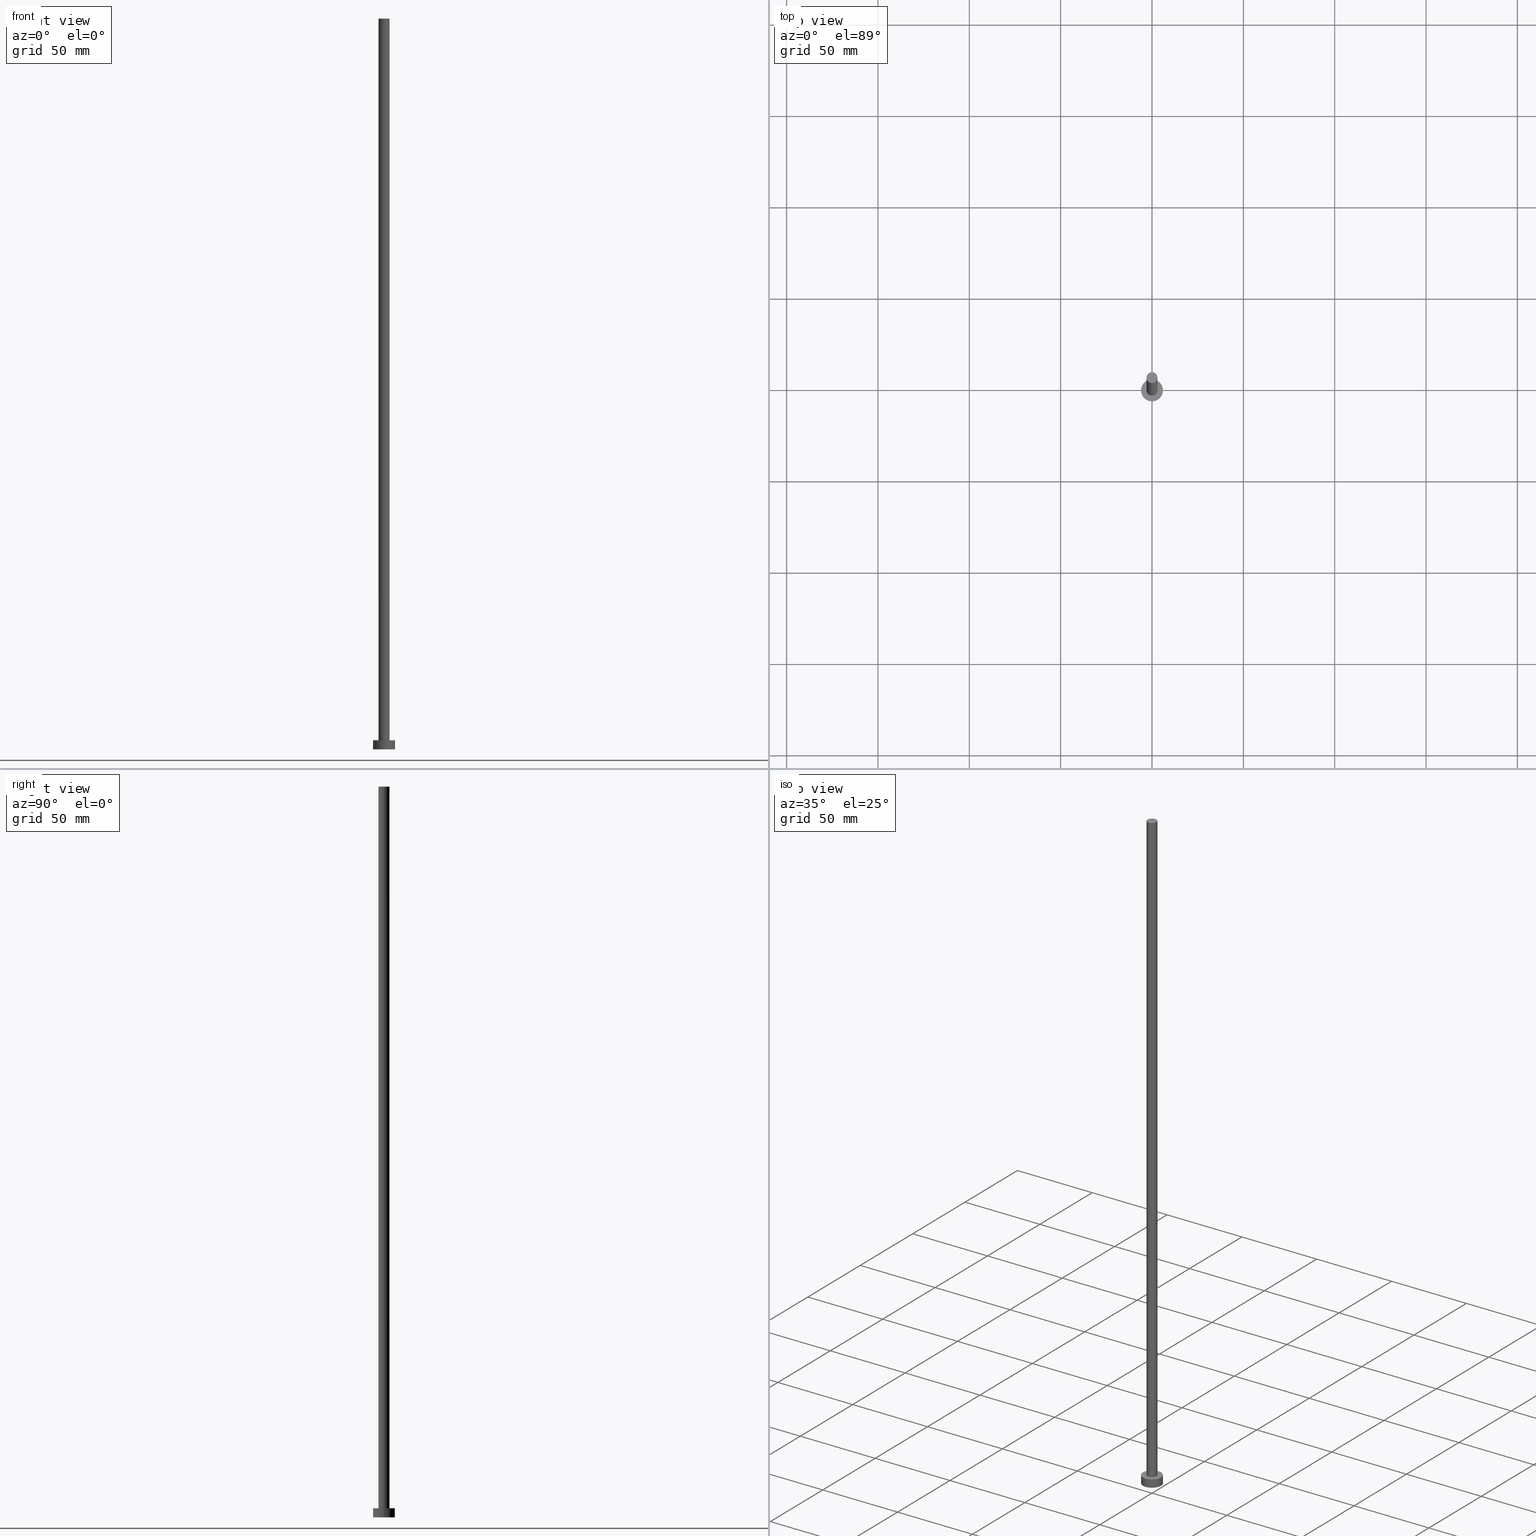
[diagram: canonical four-view strip — front | top / right | iso, engineering-drawing reading convention]
A machine part, canonical four-view strip (front | top / right | iso — engineering-drawing reading convention). The complete STEP part file that produces these views, byte-faithful:
ISO-10303-21;
HEADER;
FILE_DESCRIPTION (( 'STEP AP203' ),
    '1' );
FILE_NAME ('09df.STEP',
    '2023-02-13T15:21:38',
    ( '' ),
    ( '' ),
    'SwSTEP 2.0',
    'SolidWorks 2019',
    '' );
FILE_SCHEMA (( 'CONFIG_CONTROL_DESIGN' ));
ENDSEC;

DATA;
#1 = DIRECTION ( 'NONE',  ( 0.000000000000000000, 0.000000000000000000, 1.000000000000000000 ) ) ;
#2 = EDGE_CURVE ( 'NONE', #233, #191, #178, .T. ) ;
#3 = DIRECTION ( 'NONE',  ( 1.000000000000000000, 0.000000000000000000, 0.000000000000000000 ) ) ;
#4 = PERSON_AND_ORGANIZATION_ROLE ( 'classification_officer' ) ;
#5 = CARTESIAN_POINT ( 'NONE',  ( 3.000000000000000444, 3.673940397442059868E-16, 400.0000000000000000 ) ) ;
#6 = DATE_AND_TIME ( #51, #101 ) ;
#7 = DIRECTION ( 'NONE',  ( -0.000000000000000000, -0.000000000000000000, -1.000000000000000000 ) ) ;
#8 = CARTESIAN_POINT ( 'NONE',  ( 0.000000000000000000, 0.000000000000000000, 400.0000000000000000 ) ) ;
#9 = APPROVAL_STATUS ( 'not_yet_approved' ) ;
#10 = DIRECTION ( 'NONE',  ( -0.000000000000000000, -0.000000000000000000, -1.000000000000000000 ) ) ;
#11 = CYLINDRICAL_SURFACE ( 'NONE', #224, 6.000000000000000888 ) ;
#12 = EDGE_LOOP ( 'NONE', ( #94, #171, #74, #192 ) ) ;
#13 = DIRECTION ( 'NONE',  ( 1.000000000000000000, 0.000000000000000000, 0.000000000000000000 ) ) ;
#14 = ORIENTED_EDGE ( 'NONE', *, *, #231, .T. ) ;
#15 = FACE_OUTER_BOUND ( 'NONE', #72, .T. ) ;
#16 = APPROVAL_ROLE ( '' ) ;
#17 = EDGE_LOOP ( 'NONE', ( #40, #254, #111, #120 ) ) ;
#18 = AXIS2_PLACEMENT_3D ( 'NONE', #234, #50, #89 ) ;
#19 = DIRECTION ( 'NONE',  ( -0.000000000000000000, -0.000000000000000000, -1.000000000000000000 ) ) ;
#20 = CIRCLE ( 'NONE', #162, 3.000000000000000444 ) ;
#21 = PERSON_AND_ORGANIZATION_ROLE ( 'creator' ) ;
#22 = CIRCLE ( 'NONE', #211, 6.000000000000000888 ) ;
#23 = AXIS2_PLACEMENT_3D ( 'NONE', #30, #131, #13 ) ;
#24 = APPROVAL_DATE_TIME ( #186, #78 ) ;
#25 =( NAMED_UNIT ( * ) SI_UNIT ( $, .STERADIAN. ) SOLID_ANGLE_UNIT ( ) );
#26 = CALENDAR_DATE ( 2023, 13, 2 ) ;
#27 = APPROVAL ( #9, 'NEUR�EN�' ) ;
#28 = CARTESIAN_POINT ( 'NONE',  ( 0.000000000000000000, 0.000000000000000000, 5.000000000000000000 ) ) ;
#29 = CARTESIAN_POINT ( 'NONE',  ( 3.000000000000000444, 3.673940397442059868E-16, 400.0000000000000000 ) ) ;
#30 = CARTESIAN_POINT ( 'NONE',  ( 0.000000000000000000, 0.000000000000000000, 0.000000000000000000 ) ) ;
#31 = VERTEX_POINT ( 'NONE', #90 ) ;
#32 = EDGE_CURVE ( 'NONE', #252, #53, #118, .T. ) ;
#33 = PLANE ( 'NONE',  #63 ) ;
#34 = ORIENTED_EDGE ( 'NONE', *, *, #2, .F. ) ;
#35 = CARTESIAN_POINT ( 'NONE',  ( 0.000000000000000000, 0.000000000000000000, 5.000000000000000000 ) ) ;
#36 = CALENDAR_DATE ( 2023, 13, 2 ) ;
#37 = CC_DESIGN_APPROVAL ( #180, ( #164 ) ) ;
#38 = ORIENTED_EDGE ( 'NONE', *, *, #244, .F. ) ;
#39 = DIRECTION ( 'NONE',  ( 0.000000000000000000, 0.000000000000000000, 1.000000000000000000 ) ) ;
#40 = ORIENTED_EDGE ( 'NONE', *, *, #75, .F. ) ;
#41 = ADVANCED_FACE ( 'NONE', ( #152 ), #246, .T. ) ;
#42 = CARTESIAN_POINT ( 'NONE',  ( 0.000000000000000000, 0.000000000000000000, 5.000000000000000000 ) ) ;
#43 = AXIS2_PLACEMENT_3D ( 'NONE', #83, #81, #160 ) ;
#44 = COORDINATED_UNIVERSAL_TIME_OFFSET ( 1, 0, .AHEAD. ) ;
#45 = AXIS2_PLACEMENT_3D ( 'NONE', #183, #1, #241 ) ;
#46 = CARTESIAN_POINT ( 'NONE',  ( 0.000000000000000000, 0.000000000000000000, 400.0000000000000000 ) ) ;
#47 = SECURITY_CLASSIFICATION_LEVEL ( 'unclassified' ) ;
#48 = CC_DESIGN_PERSON_AND_ORGANIZATION_ASSIGNMENT ( #108, #4, ( #182 ) ) ;
#49 = EDGE_CURVE ( 'NONE', #53, #62, #69, .T. ) ;
#50 = DIRECTION ( 'NONE',  ( -0.000000000000000000, -0.000000000000000000, -1.000000000000000000 ) ) ;
#51 = CALENDAR_DATE ( 2023, 13, 2 ) ;
#52 = LINE ( 'NONE', #67, #239 ) ;
#53 = VERTEX_POINT ( 'NONE', #217 ) ;
#54 = EDGE_CURVE ( 'NONE', #56, #252, #238, .T. ) ;
#55 = CARTESIAN_POINT ( 'NONE',  ( 0.000000000000000000, 0.000000000000000000, 400.0000000000000000 ) ) ;
#56 = VERTEX_POINT ( 'NONE', #84 ) ;
#57 = CLOSED_SHELL ( 'NONE', ( #41, #143, #206, #250, #181, #139, #249 ) ) ;
#58 = DIRECTION ( 'NONE',  ( -1.000000000000000000, 0.000000000000000000, 0.000000000000000000 ) ) ;
#59 = PRODUCT ( '09df', '09df', '', ( #185 ) ) ;
#60 = DATE_TIME_ROLE ( 'classification_date' ) ;
#61 = EDGE_CURVE ( 'NONE', #252, #56, #22, .T. ) ;
#62 = VERTEX_POINT ( 'NONE', #86 ) ;
#63 = AXIS2_PLACEMENT_3D ( 'NONE', #248, #39, #119 ) ;
#64 = PERSON ( 'NEUR�EN�', 'NEUR�EN�', 'NEUR�EN�', ('NEUR�EN�'), ('NEUR�EN�'), ('NEUR�EN�') ) ;
#65 = AXIS2_PLACEMENT_3D ( 'NONE', #35, #71, #95 ) ;
#66 = UNCERTAINTY_MEASURE_WITH_UNIT (LENGTH_MEASURE( 1.000000000000000082E-05 ), #130, 'distance_accuracy_value', 'NONE');
#67 = CARTESIAN_POINT ( 'NONE',  ( -3.000000000000000444, 0.000000000000000000, 400.0000000000000000 ) ) ;
#68 = CARTESIAN_POINT ( 'NONE',  ( 0.000000000000000000, 0.000000000000000000, 400.0000000000000000 ) ) ;
#69 = CIRCLE ( 'NONE', #43, 6.000000000000000888 ) ;
#70 = PERSON_AND_ORGANIZATION ( #64, #222 ) ;
#71 = DIRECTION ( 'NONE',  ( 0.000000000000000000, 0.000000000000000000, 1.000000000000000000 ) ) ;
#72 = EDGE_LOOP ( 'NONE', ( #34, #79, #155, #174 ) ) ;
#73 = FACE_OUTER_BOUND ( 'NONE', #195, .T. ) ;
#74 = ORIENTED_EDGE ( 'NONE', *, *, #32, .T. ) ;
#75 = EDGE_CURVE ( 'NONE', #233, #31, #169, .T. ) ;
#76 = DIRECTION ( 'NONE',  ( -0.000000000000000000, -0.000000000000000000, -1.000000000000000000 ) ) ;
#77 = ADVANCED_BREP_SHAPE_REPRESENTATION ( '09df', ( #104, #45 ), #85 ) ;
#78 = APPROVAL ( #107, 'NEUR�EN�' ) ;
#79 = ORIENTED_EDGE ( 'NONE', *, *, #170, .F. ) ;
#80 = APPLICATION_CONTEXT ( 'configuration controlled 3d designs of mechanical parts and assemblies' ) ;
#81 = DIRECTION ( 'NONE',  ( 0.000000000000000000, 0.000000000000000000, 1.000000000000000000 ) ) ;
#82 = AXIS2_PLACEMENT_3D ( 'NONE', #115, #210, #127 ) ;
#83 = CARTESIAN_POINT ( 'NONE',  ( 0.000000000000000000, 0.000000000000000000, 0.000000000000000000 ) ) ;
#84 = CARTESIAN_POINT ( 'NONE',  ( 6.000000000000000888, 7.347880794884120722E-16, 5.000000000000000000 ) ) ;
#85 =( GEOMETRIC_REPRESENTATION_CONTEXT ( 3 ) GLOBAL_UNCERTAINTY_ASSIGNED_CONTEXT ( ( #66 ) ) GLOBAL_UNIT_ASSIGNED_CONTEXT ( ( #130, #136, #25 ) ) REPRESENTATION_CONTEXT ( 'NONE', 'WORKASPACE' ) );
#86 = CARTESIAN_POINT ( 'NONE',  ( 6.000000000000000888, 7.347880794884120722E-16, 0.000000000000000000 ) ) ;
#87 = PERSON_AND_ORGANIZATION ( #64, #222 ) ;
#88 = DATE_AND_TIME ( #209, #156 ) ;
#89 = DIRECTION ( 'NONE',  ( -1.000000000000000000, 0.000000000000000000, 0.000000000000000000 ) ) ;
#90 = CARTESIAN_POINT ( 'NONE',  ( -3.000000000000000444, 0.000000000000000000, 400.0000000000000000 ) ) ;
#91 = DIRECTION ( 'NONE',  ( 1.000000000000000000, 0.000000000000000000, -0.000000000000000000 ) ) ;
#92 = EDGE_LOOP ( 'NONE', ( #216, #38 ) ) ;
#93 = DIRECTION ( 'NONE',  ( 1.000000000000000000, 0.000000000000000000, 0.000000000000000000 ) ) ;
#94 = ORIENTED_EDGE ( 'NONE', *, *, #220, .F. ) ;
#95 = DIRECTION ( 'NONE',  ( 1.000000000000000000, 0.000000000000000000, 0.000000000000000000 ) ) ;
#96 = ORIENTED_EDGE ( 'NONE', *, *, #54, .F. ) ;
#97 = CC_DESIGN_PERSON_AND_ORGANIZATION_ASSIGNMENT ( #105, #145, ( #159 ) ) ;
#98 = CYLINDRICAL_SURFACE ( 'NONE', #18, 3.000000000000000444 ) ;
#99 = DATE_AND_TIME ( #36, #103 ) ;
#100 = ORIENTED_EDGE ( 'NONE', *, *, #75, .T. ) ;
#101 = LOCAL_TIME ( 16, 21, 38.00000000000000000, #227 ) ;
#102 = DIRECTION ( 'NONE',  ( 0.000000000000000000, 0.000000000000000000, 1.000000000000000000 ) ) ;
#103 = LOCAL_TIME ( 16, 21, 38.00000000000000000, #137 ) ;
#104 = MANIFOLD_SOLID_BREP ( 'P�idat vysunut�m3', #57 ) ;
#105 = PERSON_AND_ORGANIZATION ( #64, #222 ) ;
#106 = DIRECTION ( 'NONE',  ( 0.000000000000000000, 0.000000000000000000, 1.000000000000000000 ) ) ;
#107 = APPROVAL_STATUS ( 'not_yet_approved' ) ;
#108 = PERSON_AND_ORGANIZATION ( #64, #222 ) ;
#109 = DIRECTION ( 'NONE',  ( 1.000000000000000000, 0.000000000000000000, 0.000000000000000000 ) ) ;
#110 = PLANE ( 'NONE',  #253 ) ;
#111 = ORIENTED_EDGE ( 'NONE', *, *, #244, .T. ) ;
#112 = DIRECTION ( 'NONE',  ( 0.000000000000000000, 0.000000000000000000, 1.000000000000000000 ) ) ;
#113 = ORIENTED_EDGE ( 'NONE', *, *, #231, .F. ) ;
#114 = LOCAL_TIME ( 16, 21, 38.00000000000000000, #44 ) ;
#115 = CARTESIAN_POINT ( 'NONE',  ( 0.000000000000000000, 0.000000000000000000, 5.000000000000000000 ) ) ;
#116 = SHAPE_DEFINITION_REPRESENTATION ( #219, #77 ) ;
#117 = CC_DESIGN_DATE_AND_TIME_ASSIGNMENT ( #226, #161, ( #164 ) ) ;
#118 = LINE ( 'NONE', #167, #133 ) ;
#119 = DIRECTION ( 'NONE',  ( 1.000000000000000000, 0.000000000000000000, -0.000000000000000000 ) ) ;
#120 = ORIENTED_EDGE ( 'NONE', *, *, #197, .F. ) ;
#121 = VECTOR ( 'NONE', #7, 1000.000000000000000 ) ;
#122 = DIRECTION ( 'NONE',  ( 0.000000000000000000, 0.000000000000000000, 1.000000000000000000 ) ) ;
#123 = CC_DESIGN_PERSON_AND_ORGANIZATION_ASSIGNMENT ( #87, #21, ( #164 ) ) ;
#124 = AXIS2_PLACEMENT_3D ( 'NONE', #68, #19, #140 ) ;
#125 = DESIGN_CONTEXT ( 'detailed design', #200, 'design' ) ;
#126 = APPROVAL_ROLE ( '' ) ;
#127 = DIRECTION ( 'NONE',  ( -1.000000000000000000, 0.000000000000000000, 0.000000000000000000 ) ) ;
#128 = CC_DESIGN_PERSON_AND_ORGANIZATION_ASSIGNMENT ( #205, #225, ( #159 ) ) ;
#129 = ORIENTED_EDGE ( 'NONE', *, *, #61, .T. ) ;
#130 =( LENGTH_UNIT ( ) NAMED_UNIT ( * ) SI_UNIT ( .MILLI., .METRE. ) );
#131 = DIRECTION ( 'NONE',  ( 0.000000000000000000, 0.000000000000000000, 1.000000000000000000 ) ) ;
#132 = APPROVAL_DATE_TIME ( #99, #27 ) ;
#133 = VECTOR ( 'NONE', #10, 1000.000000000000000 ) ;
#134 = CC_DESIGN_SECURITY_CLASSIFICATION ( #182, ( #159 ) ) ;
#135 = FACE_OUTER_BOUND ( 'NONE', #12, .T. ) ;
#136 =( NAMED_UNIT ( * ) PLANE_ANGLE_UNIT ( ) SI_UNIT ( $, .RADIAN. ) );
#137 = COORDINATED_UNIVERSAL_TIME_OFFSET ( 1, 0, .AHEAD. ) ;
#138 = ORIENTED_EDGE ( 'NONE', *, *, #32, .F. ) ;
#139 = ADVANCED_FACE ( 'NONE', ( #15 ), #98, .T. ) ;
#140 = DIRECTION ( 'NONE',  ( -1.000000000000000000, 0.000000000000000000, 0.000000000000000000 ) ) ;
#141 = VECTOR ( 'NONE', #232, 1000.000000000000000 ) ;
#142 = APPROVAL_PERSON_ORGANIZATION ( #212, #27, #16 ) ;
#143 = ADVANCED_FACE ( 'NONE', ( #73 ), #11, .T. ) ;
#144 = COORDINATED_UNIVERSAL_TIME_OFFSET ( 1, 0, .AHEAD. ) ;
#145 = PERSON_AND_ORGANIZATION_ROLE ( 'creator' ) ;
#146 = CC_DESIGN_APPROVAL ( #78, ( #159 ) ) ;
#147 = APPROVAL_STATUS ( 'not_yet_approved' ) ;
#148 = CARTESIAN_POINT ( 'NONE',  ( 3.000000000000000444, 3.673940397442059868E-16, 5.000000000000000000 ) ) ;
#149 = FACE_OUTER_BOUND ( 'NONE', #157, .T. ) ;
#150 = COORDINATED_UNIVERSAL_TIME_OFFSET ( 1, 0, .AHEAD. ) ;
#151 = CARTESIAN_POINT ( 'NONE',  ( -6.000000000000000888, 0.000000000000000000, 5.000000000000000000 ) ) ;
#152 = FACE_OUTER_BOUND ( 'NONE', #17, .T. ) ;
#153 = CYLINDRICAL_SURFACE ( 'NONE', #82, 6.000000000000000888 ) ;
#154 = DIRECTION ( 'NONE',  ( 0.000000000000000000, 0.000000000000000000, 1.000000000000000000 ) ) ;
#155 = ORIENTED_EDGE ( 'NONE', *, *, #197, .T. ) ;
#156 = LOCAL_TIME ( 16, 21, 38.00000000000000000, #150 ) ;
#157 = EDGE_LOOP ( 'NONE', ( #235, #113 ) ) ;
#158 = CC_DESIGN_DATE_AND_TIME_ASSIGNMENT ( #6, #60, ( #182 ) ) ;
#159 = PRODUCT_DEFINITION_FORMATION_WITH_SPECIFIED_SOURCE ( 'LIBOVOLN�', '', #59, .NOT_KNOWN. ) ;
#160 = DIRECTION ( 'NONE',  ( 1.000000000000000000, 0.000000000000000000, 0.000000000000000000 ) ) ;
#161 = DATE_TIME_ROLE ( 'creation_date' ) ;
#162 = AXIS2_PLACEMENT_3D ( 'NONE', #55, #245, #109 ) ;
#163 = PERSON_AND_ORGANIZATION ( #64, #222 ) ;
#164 = PRODUCT_DEFINITION ( 'NEZN�M�', '', #159, #125 ) ;
#165 = APPROVAL_DATE_TIME ( #88, #180 ) ;
#166 = DIRECTION ( 'NONE',  ( 1.000000000000000000, 0.000000000000000000, 0.000000000000000000 ) ) ;
#167 = CARTESIAN_POINT ( 'NONE',  ( -6.000000000000000888, 0.000000000000000000, 5.000000000000000000 ) ) ;
#168 = FACE_BOUND ( 'NONE', #92, .T. ) ;
#169 = CIRCLE ( 'NONE', #199, 3.000000000000000444 ) ;
#170 = EDGE_CURVE ( 'NONE', #31, #233, #20, .T. ) ;
#171 = ORIENTED_EDGE ( 'NONE', *, *, #61, .F. ) ;
#172 = AXIS2_PLACEMENT_3D ( 'NONE', #8, #154, #175 ) ;
#173 = DIRECTION ( 'NONE',  ( 0.000000000000000000, 0.000000000000000000, 1.000000000000000000 ) ) ;
#174 = ORIENTED_EDGE ( 'NONE', *, *, #203, .T. ) ;
#175 = DIRECTION ( 'NONE',  ( 1.000000000000000000, 0.000000000000000000, -0.000000000000000000 ) ) ;
#176 = ORIENTED_EDGE ( 'NONE', *, *, #220, .T. ) ;
#177 = CARTESIAN_POINT ( 'NONE',  ( 0.000000000000000000, 0.000000000000000000, 5.000000000000000000 ) ) ;
#178 = LINE ( 'NONE', #29, #121 ) ;
#179 = CIRCLE ( 'NONE', #65, 3.000000000000000444 ) ;
#180 = APPROVAL ( #147, 'NEUR�EN�' ) ;
#181 = ADVANCED_FACE ( 'NONE', ( #149 ), #110, .F. ) ;
#182 = SECURITY_CLASSIFICATION ( '', '', #47 ) ;
#183 = CARTESIAN_POINT ( 'NONE',  ( 0.000000000000000000, 0.000000000000000000, 0.000000000000000000 ) ) ;
#184 = CC_DESIGN_PERSON_AND_ORGANIZATION_ASSIGNMENT ( #163, #247, ( #59 ) ) ;
#185 = MECHANICAL_CONTEXT ( 'NONE', #80, 'mechanical' ) ;
#186 = DATE_AND_TIME ( #204, #114 ) ;
#187 = APPROVAL_ROLE ( '' ) ;
#188 = LINE ( 'NONE', #251, #141 ) ;
#189 = ORIENTED_EDGE ( 'NONE', *, *, #170, .T. ) ;
#190 = PLANE ( 'NONE',  #172 ) ;
#191 = VERTEX_POINT ( 'NONE', #148 ) ;
#192 = ORIENTED_EDGE ( 'NONE', *, *, #49, .T. ) ;
#193 = APPROVAL_PERSON_ORGANIZATION ( #70, #180, #187 ) ;
#194 = CARTESIAN_POINT ( 'NONE',  ( -3.000000000000000444, 0.000000000000000000, 5.000000000000000000 ) ) ;
#195 = EDGE_LOOP ( 'NONE', ( #96, #176, #14, #138 ) ) ;
#196 = FACE_OUTER_BOUND ( 'NONE', #229, .T. ) ;
#197 = EDGE_CURVE ( 'NONE', #31, #208, #52, .T. ) ;
#198 = PRODUCT_RELATED_PRODUCT_CATEGORY ( 'detail', '', ( #59 ) ) ;
#199 = AXIS2_PLACEMENT_3D ( 'NONE', #46, #106, #166 ) ;
#200 = APPLICATION_CONTEXT ( 'configuration controlled 3d designs of mechanical parts and assemblies' ) ;
#201 = LOCAL_TIME ( 16, 21, 38.00000000000000000, #144 ) ;
#202 = DIRECTION ( 'NONE',  ( 1.000000000000000000, 0.000000000000000000, 0.000000000000000000 ) ) ;
#203 = EDGE_CURVE ( 'NONE', #208, #191, #230, .T. ) ;
#204 = CALENDAR_DATE ( 2023, 13, 2 ) ;
#205 = PERSON_AND_ORGANIZATION ( #64, #222 ) ;
#206 = ADVANCED_FACE ( 'NONE', ( #135 ), #153, .T. ) ;
#207 = DIRECTION ( 'NONE',  ( -0.000000000000000000, -0.000000000000000000, -1.000000000000000000 ) ) ;
#208 = VERTEX_POINT ( 'NONE', #194 ) ;
#209 = CALENDAR_DATE ( 2023, 13, 2 ) ;
#210 = DIRECTION ( 'NONE',  ( -0.000000000000000000, -0.000000000000000000, -1.000000000000000000 ) ) ;
#211 = AXIS2_PLACEMENT_3D ( 'NONE', #242, #102, #3 ) ;
#212 = PERSON_AND_ORGANIZATION ( #64, #222 ) ;
#213 = EDGE_LOOP ( 'NONE', ( #129, #237 ) ) ;
#214 = CC_DESIGN_APPROVAL ( #27, ( #182 ) ) ;
#215 = FACE_OUTER_BOUND ( 'NONE', #213, .T. ) ;
#216 = ORIENTED_EDGE ( 'NONE', *, *, #203, .F. ) ;
#217 = CARTESIAN_POINT ( 'NONE',  ( -6.000000000000000888, 0.000000000000000000, 0.000000000000000000 ) ) ;
#218 = CIRCLE ( 'NONE', #23, 6.000000000000000888 ) ;
#219 = PRODUCT_DEFINITION_SHAPE ( 'NONE', 'NONE',  #164 ) ;
#220 = EDGE_CURVE ( 'NONE', #56, #62, #188, .T. ) ;
#221 = AXIS2_PLACEMENT_3D ( 'NONE', #42, #122, #202 ) ;
#222 = ORGANIZATION ( 'NEUR�EN�', 'NEUR�EN�', '' ) ;
#223 = PERSON_AND_ORGANIZATION ( #64, #222 ) ;
#224 = AXIS2_PLACEMENT_3D ( 'NONE', #28, #76, #58 ) ;
#225 = PERSON_AND_ORGANIZATION_ROLE ( 'design_supplier' ) ;
#226 = DATE_AND_TIME ( #26, #201 ) ;
#227 = COORDINATED_UNIVERSAL_TIME_OFFSET ( 1, 0, .AHEAD. ) ;
#228 = CARTESIAN_POINT ( 'NONE',  ( 0.000000000000000000, 0.000000000000000000, 0.000000000000000000 ) ) ;
#229 = EDGE_LOOP ( 'NONE', ( #189, #100 ) ) ;
#230 = CIRCLE ( 'NONE', #255, 3.000000000000000444 ) ;
#231 = EDGE_CURVE ( 'NONE', #62, #53, #218, .T. ) ;
#232 = DIRECTION ( 'NONE',  ( -0.000000000000000000, -0.000000000000000000, -1.000000000000000000 ) ) ;
#233 = VERTEX_POINT ( 'NONE', #5 ) ;
#234 = CARTESIAN_POINT ( 'NONE',  ( 0.000000000000000000, 0.000000000000000000, 400.0000000000000000 ) ) ;
#235 = ORIENTED_EDGE ( 'NONE', *, *, #49, .F. ) ;
#236 = APPROVAL_PERSON_ORGANIZATION ( #223, #78, #126 ) ;
#237 = ORIENTED_EDGE ( 'NONE', *, *, #54, .T. ) ;
#238 = CIRCLE ( 'NONE', #221, 6.000000000000000888 ) ;
#239 = VECTOR ( 'NONE', #207, 1000.000000000000000 ) ;
#240 = APPLICATION_PROTOCOL_DEFINITION ( 'international standard', 'config_control_design', 1994, #80 ) ;
#241 = DIRECTION ( 'NONE',  ( 1.000000000000000000, 0.000000000000000000, 0.000000000000000000 ) ) ;
#242 = CARTESIAN_POINT ( 'NONE',  ( 0.000000000000000000, 0.000000000000000000, 5.000000000000000000 ) ) ;
#243 = APPLICATION_PROTOCOL_DEFINITION ( 'international standard', 'config_control_design', 1994, #200 ) ;
#244 = EDGE_CURVE ( 'NONE', #191, #208, #179, .T. ) ;
#245 = DIRECTION ( 'NONE',  ( 0.000000000000000000, 0.000000000000000000, 1.000000000000000000 ) ) ;
#246 = CYLINDRICAL_SURFACE ( 'NONE', #124, 3.000000000000000444 ) ;
#247 = PERSON_AND_ORGANIZATION_ROLE ( 'design_owner' ) ;
#248 = CARTESIAN_POINT ( 'NONE',  ( 0.000000000000000000, 0.000000000000000000, 5.000000000000000000 ) ) ;
#249 = ADVANCED_FACE ( 'NONE', ( #196 ), #190, .T. ) ;
#250 = ADVANCED_FACE ( 'NONE', ( #168, #215 ), #33, .T. ) ;
#251 = CARTESIAN_POINT ( 'NONE',  ( 6.000000000000000888, 7.347880794884120722E-16, 5.000000000000000000 ) ) ;
#252 = VERTEX_POINT ( 'NONE', #151 ) ;
#253 = AXIS2_PLACEMENT_3D ( 'NONE', #228, #112, #91 ) ;
#254 = ORIENTED_EDGE ( 'NONE', *, *, #2, .T. ) ;
#255 = AXIS2_PLACEMENT_3D ( 'NONE', #177, #173, #93 ) ;
ENDSEC;
END-ISO-10303-21;
